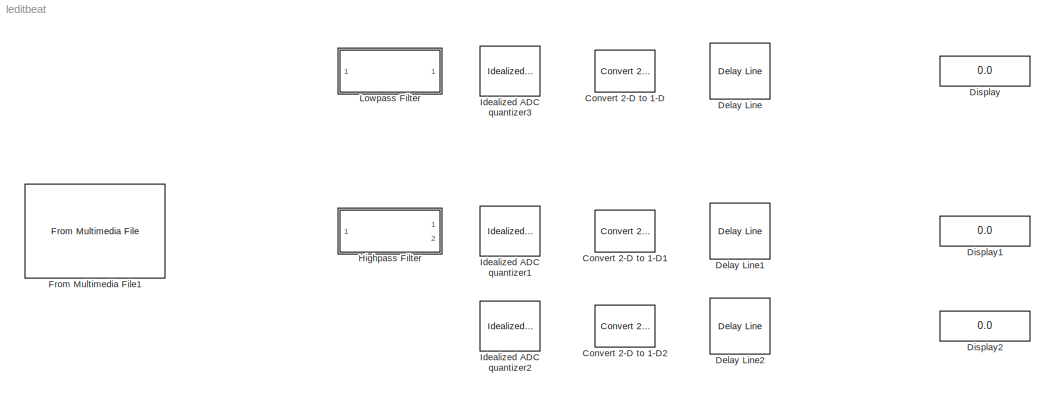
MODEL leditbeat
KIND model
BLOCK [Reference] Convert 2-D to 1-D  REF=dspsigattribs/Convert 2-D to 1-D
  FunctionWithSeparateData = off
  GeneratePreprocessorConditionals = off
  Ports = [1, 1]
  RTWMemSecDataConstants = Inherit from model
  RTWMemSecDataInternal = Inherit from model
  RTWMemSecDataParameters = Inherit from model
  RTWMemSecFuncExecute = Inherit from model
  RTWMemSecFuncInitTerm = Inherit from model
  SID = 12
  ShowPortLabels = none
  SourceBlock = dspsigattribs/Convert 2-D to 1-D
  SourceType = Convert 2-D to 1-D
  SystemSampleTime = -1
BLOCK [Reference] Convert 2-D to 1-D1  REF=dspsigattribs/Convert 2-D to 1-D
  FunctionWithSeparateData = off
  GeneratePreprocessorConditionals = off
  Ports = [1, 1]
  RTWMemSecDataConstants = Inherit from model
  RTWMemSecDataInternal = Inherit from model
  RTWMemSecDataParameters = Inherit from model
  RTWMemSecFuncExecute = Inherit from model
  RTWMemSecFuncInitTerm = Inherit from model
  SID = 19
  ShowPortLabels = none
  SourceBlock = dspsigattribs/Convert 2-D to 1-D
  SourceType = Convert 2-D to 1-D
  SystemSampleTime = -1
BLOCK [Reference] Convert 2-D to 1-D2  REF=dspsigattribs/Convert 2-D to 1-D
  FunctionWithSeparateData = off
  GeneratePreprocessorConditionals = off
  Ports = [1, 1]
  RTWMemSecDataConstants = Inherit from model
  RTWMemSecDataInternal = Inherit from model
  RTWMemSecDataParameters = Inherit from model
  RTWMemSecFuncExecute = Inherit from model
  RTWMemSecFuncInitTerm = Inherit from model
  SID = 20
  ShowPortLabels = none
  SourceBlock = dspsigattribs/Convert 2-D to 1-D
  SourceType = Convert 2-D to 1-D
  SystemSampleTime = -1
BLOCK [Reference] Delay Line  REF=dspbuff3/Delay Line
  Ports = [1, 1]
  SID = 13
  SourceBlock = dspbuff3/Delay Line
  SourceType = Delay Line
  TreatMby1Signals = One channel
  UserData = DataTag0
  UserDataPersistent = on
  directfeed = off
  enable_output = off
  hold_output = off
  ic = 0
  siz = 64
BLOCK [Reference] Delay Line1  REF=dspbuff3/Delay Line
  Ports = [1, 1]
  SID = 23
  SourceBlock = dspbuff3/Delay Line
  SourceType = Delay Line
  TreatMby1Signals = One channel
  UserData = DataTag1
  UserDataPersistent = on
  directfeed = off
  enable_output = off
  hold_output = off
  ic = 0
  siz = 64
BLOCK [Reference] Delay Line2  REF=dspbuff3/Delay Line
  Ports = [1, 1]
  SID = 24
  SourceBlock = dspbuff3/Delay Line
  SourceType = Delay Line
  TreatMby1Signals = One channel
  UserData = DataTag2
  UserDataPersistent = on
  directfeed = off
  enable_output = off
  hold_output = off
  ic = 0
  siz = 64
BLOCK [Display] Display
  Decimation = 1
  Lockdown = off
  Ports = [1]
  SID = 36
BLOCK [Display] Display1
  Decimation = 1
  Lockdown = off
  Ports = [1]
  SID = 38
BLOCK [Display] Display2
  Decimation = 1
  Lockdown = off
  Ports = [1]
  SID = 39
BLOCK [Reference] From Multimedia File1  REF=dspsrcs4/From Multimedia File
  Ports = [0, 1]
  SID = 11
  SourceBlock = dspsrcs4/From Multimedia File
  SourceType = From Multimedia File
  audioDataType = single
  audioFrameSize = 1024
  colorVideoFormat = Separate color signals
  computeAudioFrameSize = off
  dataOrg = Column-major
  fourcc = RGB
  inheritSampleTime = on
  inputFilename = <userpath><path>
  isIntensityVideo = off
  loop = on
  noAudioOutput = off
  numPlays = inf
  outputEOF = off
  outputStreams = Audio only
  userDefinedSampleTime = 1/30
  videoDataType = single
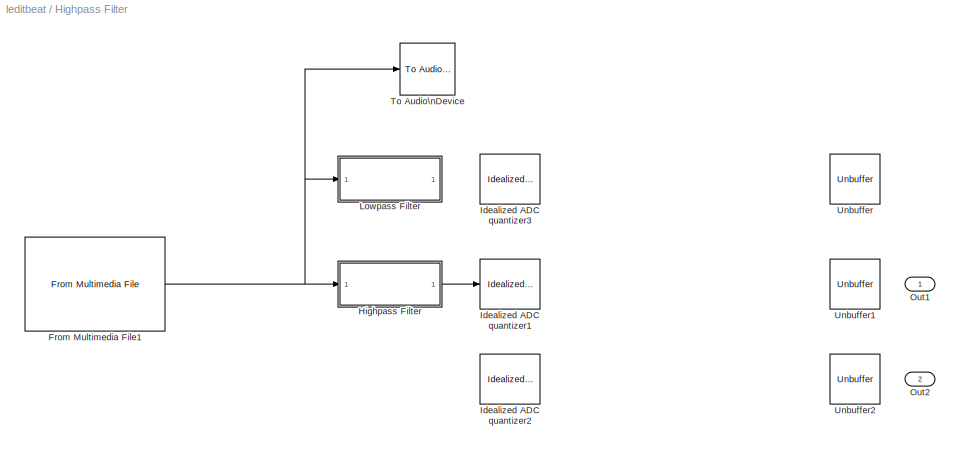
BLOCK [SubSystem] Highpass Filter
  CopyFcn = fdesignblkfcn(gcbh, {'CopyFcn'});
  DialogController = fdesignblkfcn
  DialogControllerArgs = DataTag4
  FunctionWithSeparateData = off
  InitFcn = fdesignblkfcn(gcbh, {'InitFcn'});
  MaskCapabilities = dspmaskedcaps(gcbh)
  MaskDescription = Design a highpass filter
  MaskDisplay = disp('Highpass')
  MaskHelp = helpview(mapfilelocation('dsp'), 'dsphighpassfilter');
  MaskHideContents = off
  MaskIconFrame = on
  MaskIconOpaque = on
  MaskIconRotate = none
  MaskIconUnits = autoscale
  MaskPortRotate = default
  MaskSelfModifiable = on
  MaskType = Highpass Filter
  MinAlgLoopOccurrences = off
  Opaque = off
  Ports = [1, 2]
  PropExecContextOutsideSubsystem = off
  RTWSystemCode = Auto
  RequestExecContextInheritance = off
  SID = 5
  UserData = DataTag3
  UserDataPersistent = on
BLOCK [Reference] Highpass Filter/From Multimedia File1  REF=dspsrcs4/From Multimedia File
  Ports = [0, 1]
  SID = 5:11
  SourceBlock = dspsrcs4/From Multimedia File
  SourceType = From Multimedia File
  audioDataType = single
  audioFrameSize = 1024
  colorVideoFormat = Separate color signals
  computeAudioFrameSize = off
  dataOrg = Column-major
  fourcc = RGB
  inheritSampleTime = on
  inputFilename = <userpath><path>
  isIntensityVideo = off
  loop = on
  noAudioOutput = off
  numPlays = inf
  outputEOF = off
  outputStreams = Audio only
  userDefinedSampleTime = 1/30
  videoDataType = single
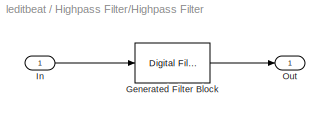
BLOCK [SubSystem] Highpass Filter/Highpass Filter
  CopyFcn = fdesignblkfcn(gcbh, {'CopyFcn'});
  DialogController = fdesignblkfcn
  DialogControllerArgs = DataTag6
  FunctionWithSeparateData = off
  InitFcn = fdesignblkfcn(gcbh, {'InitFcn'});
  MaskCapabilities = dspmaskedcaps(gcbh)
  MaskDescription = Design a highpass filter
  MaskDisplay = disp('Highpass')
  MaskHelp = helpview(mapfilelocation('dsp'), 'dsphighpassfilter');
  MaskHideContents = off
  MaskIconFrame = on
  MaskIconOpaque = on
  MaskIconRotate = none
  MaskIconUnits = autoscale
  MaskPortRotate = default
  MaskSelfModifiable = on
  MaskType = Highpass Filter
  MinAlgLoopOccurrences = off
  Opaque = off
  Ports = [1, 1]
  PropExecContextOutsideSubsystem = off
  RTWSystemCode = Auto
  RequestExecContextInheritance = off
  SID = 5:5
  UserData = DataTag5
  UserDataPersistent = on
BLOCK [Reference] Highpass Filter/Highpass Filter/Generated Filter Block  REF=dsparch4/Digital Filter
  AllPoleFiltStruct = Direct form
  BiQuadCoeffs = [1 0.3 0.4 1 0.1 0.2]
  CoeffSource = Specify via dialog
  DenCoeffs = [1 0.1]
  FIRFiltStruct = Direct form
  FiltPerSampPopup = One filter per frame
  FilterSource = Specify via dialog
  IC = 0
  ICden = 0
  ICnum = 0
  IIRFiltStruct = Direct form II transposed
  InputProcessing = Columns as channels (frame based)
  LatticeCoeffs = [0.2 0.4]
  LockScale = off
  NumCoeffs = [-0.00171368266511037 0.00831437844808067 -0.0127173552334869 0.00556095179025034 0.00733971024255366 -0.00653104905017925 -0.0076900499697795 0.0090269831680985 0.00883886189950912 -0.0129607413537662 -0.0100749586672528 0.0185201740100089 0.011233354613589 -0.0263752483836136 -0.0122707821857659 0.0381809766923897 0.0131304259182936 -0.0582933593251923 -0.0137682959486481 0.102813257992074 0.014...<+483ch>
  Ports = [1, 1]
  SID = 5:5:1054
  ScaleValues = 1
  SourceBlock = dsparch4/Digital Filter
  SourceType = Digital Filter
  Tag = BlockMethodSubSystem
  TypePopup = FIR (all zeros)
  UserData = DataTag7
  UserDataPersistent = on
  accumFracLength = 30
  accumMode = Same as product output
  accumWordLength = 32
  additionalParams = off
  allowOverrides = on
  denIgnore = on
  dfiltObjectName = dfilt.dffir([1 2 1])
  firstCoeffFracLength = 15
  firstCoeffMode = Same word length as input
  firstCoeffWordLength = 16
  memoryFracLength = 15
  memoryMode = Same as accumulator
  memoryWordLength = 16
  multiplicandFracLength = 30
  multiplicandMode = Same as output
  multiplicandWordLength = 32
  outputFracLength = 15
  outputMode = Same as accumulator
  outputWordLength = 16
  overflowMode = off
  prodOutputFracLength = 30
  prodOutputMode = Same as input
  prodOutputWordLength = 32
  roundingMode = Floor
  scaleValueFracLength = 14
  secondCoeffFracLength = 15
  secondCoeffMode = Same as numerator
  secondCoeffWordLength = 16
  showAcc = off
  showCoeff = off
  showMem = off
  showMpy = off
  showOut = off
  stageIOMode = Same as input
  stageIOWordLength = 16
  stageInFracLength = 15
  stageOutFracLength = 15
  tapSumFracLength = 30
  tapSumMode = Same as input
  tapSumWordLength = 32
  thirdCoeffFracLength = 15
  thirdCoeffMode = Same as input
  thirdCoeffWordLength = 16
BLOCK [Inport] Highpass Filter/Highpass Filter/In
  IconDisplay = Port number
  SID = 5:5:9
BLOCK [Outport] Highpass Filter/Highpass Filter/Out
  IconDisplay = Port number
  SID = 5:5:9
BLOCK [Reference] Highpass Filter/Idealized ADC quantizer1  REF=simulink_extras/Additional\nDiscrete/Idealized ADC quantizer
  AttributesFormatString = (settings: %<NumberOfConverterBits>-bit converter\\nVmin: %<Vmin>, Vmax: %<Vmax>)
  FunctionWithSeparateData = off
  GeneratePreprocessorConditionals = off
  NumberOfConverterBits = 8
  OutputDataType = uint8
  OutputNegativeValues = off
  Ports = [1, 1]
  RTWMemSecDataConstants = Inherit from model
  RTWMemSecDataInternal = Inherit from model
  RTWMemSecDataParameters = Inherit from model
  RTWMemSecFuncExecute = Inherit from model
  RTWMemSecFuncInitTerm = Inherit from model
  SID = 5:21
  ShowPortLabels = FromPortIcon
  SourceBlock = simulink_extras/Additional\nDiscrete/Idealized ADC quantizer
  SourceType = IdealADC
  SystemSampleTime = -1
  Vmax = 255
  Vmin = 0
BLOCK [Reference] Highpass Filter/Idealized ADC quantizer2  REF=simulink_extras/Additional\nDiscrete/Idealized ADC quantizer
  AttributesFormatString = (settings: %<NumberOfConverterBits>-bit converter\\nVmin: %<Vmin>, Vmax: %<Vmax>)
  FunctionWithSeparateData = off
  GeneratePreprocessorConditionals = off
  NumberOfConverterBits = 8
  OutputDataType = uint8
  OutputNegativeValues = off
  Ports = [1, 1]
  RTWMemSecDataConstants = Inherit from model
  RTWMemSecDataInternal = Inherit from model
  RTWMemSecDataParameters = Inherit from model
  RTWMemSecFuncExecute = Inherit from model
  RTWMemSecFuncInitTerm = Inherit from model
  SID = 5:22
  ShowPortLabels = FromPortIcon
  SourceBlock = simulink_extras/Additional\nDiscrete/Idealized ADC quantizer
  SourceType = IdealADC
  SystemSampleTime = -1
  Vmax = 255
  Vmin = 0
BLOCK [Reference] Highpass Filter/Idealized ADC quantizer3  REF=simulink_extras/Additional\nDiscrete/Idealized ADC quantizer
  AttributesFormatString = (settings: %<NumberOfConverterBits>-bit converter\\nVmin: %<Vmin>, Vmax: %<Vmax>)
  FunctionWithSeparateData = off
  GeneratePreprocessorConditionals = off
  NumberOfConverterBits = 16
  OutputDataType = single
  OutputNegativeValues = off
  Ports = [1, 1]
  RTWMemSecDataConstants = Inherit from model
  RTWMemSecDataInternal = Inherit from model
  RTWMemSecDataParameters = Inherit from model
  RTWMemSecFuncExecute = Inherit from model
  RTWMemSecFuncInitTerm = Inherit from model
  SID = 5:37
  ShowPortLabels = FromPortIcon
  SourceBlock = simulink_extras/Additional\nDiscrete/Idealized ADC quantizer
  SourceType = IdealADC
  SystemSampleTime = -1
  Vmax = 5
  Vmin = 0
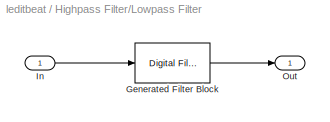
BLOCK [SubSystem] Highpass Filter/Lowpass Filter
  CopyFcn = fdesignblkfcn(gcbh, {'CopyFcn'});
  DialogController = fdesignblkfcn
  DialogControllerArgs = DataTag9
  FunctionWithSeparateData = off
  InitFcn = fdesignblkfcn(gcbh, {'InitFcn'});
  MaskCapabilities = dspmaskedcaps(gcbh)
  MaskDescription = Design a lowpass filter
  MaskDisplay = disp('Lowpass')
  MaskHelp = helpview(mapfilelocation('dsp'), 'dsplowpassfilter');\n
  MaskHideContents = off
  MaskIconFrame = on
  MaskIconOpaque = on
  MaskIconRotate = none
  MaskIconUnits = autoscale
  MaskPortRotate = default
  MaskSelfModifiable = on
  MaskType = Lowpass Filter
  MinAlgLoopOccurrences = off
  Opaque = off
  Ports = [1, 1]
  PropExecContextOutsideSubsystem = off
  RTWSystemCode = Auto
  RequestExecContextInheritance = off
  SID = 5:2
  UserData = DataTag8
  UserDataPersistent = on
BLOCK [Reference] Highpass Filter/Lowpass Filter/Generated Filter Block  REF=dsparch4/Digital Filter
  AllPoleFiltStruct = Direct form
  BiQuadCoeffs = [1 0.3 0.4 1 0.1 0.2]
  CoeffSource = Specify via dialog
  DenCoeffs = [1 0.1]
  FIRFiltStruct = Direct form
  FiltPerSampPopup = One filter per frame
  FilterSource = Specify via dialog
  IC = 0
  ICden = 0
  ICnum = 0
  IIRFiltStruct = Direct form II transposed
  InputProcessing = Columns as channels (frame based)
  LatticeCoeffs = [0.2 0.4]
  LockScale = off
  NumCoeffs = [-0.00242287385232699 -0.00208324498207929 0.00677034464011864 0.016731945423489 0.0111170760810776 -0.00623114541414452 -0.00840161718602686 0.00925679761513803 0.0129828838088558 -0.010121234703279 -0.0182735187337825 0.011431962071778 0.0261758885804076 -0.012489027835323 -0.0379966231454636 0.0133889451993669 0.0581554658147299 -0.0140480435158089 -0.102724668578822 0.0144622757712384 0.317166...<+437ch>
  Ports = [1, 1]
  SID = 5:2:738
  ScaleValues = 1
  SourceBlock = dsparch4/Digital Filter
  SourceType = Digital Filter
  Tag = BlockMethodSubSystem
  TypePopup = FIR (all zeros)
  UserData = DataTag10
  UserDataPersistent = on
  accumFracLength = 30
  accumMode = Same as product output
  accumWordLength = 32
  additionalParams = off
  allowOverrides = on
  denIgnore = on
  dfiltObjectName = dfilt.dffir([1 2 1])
  firstCoeffFracLength = 15
  firstCoeffMode = Same word length as input
  firstCoeffWordLength = 16
  memoryFracLength = 15
  memoryMode = Same as accumulator
  memoryWordLength = 16
  multiplicandFracLength = 30
  multiplicandMode = Same as output
  multiplicandWordLength = 32
  outputFracLength = 15
  outputMode = Same as accumulator
  outputWordLength = 16
  overflowMode = off
  prodOutputFracLength = 30
  prodOutputMode = Same as input
  prodOutputWordLength = 32
  roundingMode = Floor
  scaleValueFracLength = 14
  secondCoeffFracLength = 15
  secondCoeffMode = Same as numerator
  secondCoeffWordLength = 16
  showAcc = off
  showCoeff = off
  showMem = off
  showMpy = off
  showOut = off
  stageIOMode = Same as input
  stageIOWordLength = 16
  stageInFracLength = 15
  stageOutFracLength = 15
  tapSumFracLength = 30
  tapSumMode = Same as input
  tapSumWordLength = 32
  thirdCoeffFracLength = 15
  thirdCoeffMode = Same as input
  thirdCoeffWordLength = 16
BLOCK [Inport] Highpass Filter/Lowpass Filter/In
  IconDisplay = Port number
  SID = 5:2:12
BLOCK [Outport] Highpass Filter/Lowpass Filter/Out
  IconDisplay = Port number
  SID = 5:2:12
BLOCK [Outport] Highpass Filter/Out1
  IconDisplay = Port number
  SID = 5:39
BLOCK [Outport] Highpass Filter/Out2
  IconDisplay = Port number
  Port = 2
  SID = 5:40
BLOCK [Reference] Highpass Filter/To Audio\nDevice  REF=dspsnks4/To Audio\nDevice
  Ports = [1]
  SID = 5:9
  SourceBlock = dspsnks4/To Audio\nDevice
  SourceType = To Audio Device
  autoBufferSize = on
  bufferSize = 4096
  deviceDatatype = Determine from input data type
  deviceName = Default
  inheritSampleRate = on
  queueDuration = 1.0
  sampleRate = 44100
BLOCK [Unbuffer] Highpass Filter/Unbuffer
  Ports = [1, 1]
  SID = 5:14
  SampleBasedProcessing = Same as frame based
BLOCK [Unbuffer] Highpass Filter/Unbuffer1
  Ports = [1, 1]
  SID = 5:25
  SampleBasedProcessing = Same as frame based
BLOCK [Unbuffer] Highpass Filter/Unbuffer2
  Ports = [1, 1]
  SID = 5:26
  SampleBasedProcessing = Same as frame based
BLOCK [Reference] Idealized ADC quantizer1  REF=simulink_extras/Additional\nDiscrete/Idealized ADC quantizer
  AttributesFormatString = (settings: %<NumberOfConverterBits>-bit converter\\nVmin: %<Vmin>, Vmax: %<Vmax>)
  FunctionWithSeparateData = off
  GeneratePreprocessorConditionals = off
  NumberOfConverterBits = 16
  OutputDataType = int16
  OutputNegativeValues = off
  Ports = [1, 1]
  RTWMemSecDataConstants = Inherit from model
  RTWMemSecDataInternal = Inherit from model
  RTWMemSecDataParameters = Inherit from model
  RTWMemSecFuncExecute = Inherit from model
  RTWMemSecFuncInitTerm = Inherit from model
  SID = 21
  ShowPortLabels = FromPortIcon
  SourceBlock = simulink_extras/Additional\nDiscrete/Idealized ADC quantizer
  SourceType = IdealADC
  SystemSampleTime = -1
  Vmax = 5
  Vmin = 0
BLOCK [Reference] Idealized ADC quantizer2  REF=simulink_extras/Additional\nDiscrete/Idealized ADC quantizer
  AttributesFormatString = (settings: %<NumberOfConverterBits>-bit converter\\nVmin: %<Vmin>, Vmax: %<Vmax>)
  FunctionWithSeparateData = off
  GeneratePreprocessorConditionals = off
  NumberOfConverterBits = 16
  OutputDataType = int16
  OutputNegativeValues = off
  Ports = [1, 1]
  RTWMemSecDataConstants = Inherit from model
  RTWMemSecDataInternal = Inherit from model
  RTWMemSecDataParameters = Inherit from model
  RTWMemSecFuncExecute = Inherit from model
  RTWMemSecFuncInitTerm = Inherit from model
  SID = 22
  ShowPortLabels = FromPortIcon
  SourceBlock = simulink_extras/Additional\nDiscrete/Idealized ADC quantizer
  SourceType = IdealADC
  SystemSampleTime = -1
  Vmax = 5
  Vmin = 0
BLOCK [Reference] Idealized ADC quantizer3  REF=simulink_extras/Additional\nDiscrete/Idealized ADC quantizer
  AttributesFormatString = (settings: %<NumberOfConverterBits>-bit converter\\nVmin: %<Vmin>, Vmax: %<Vmax>)
  FunctionWithSeparateData = off
  GeneratePreprocessorConditionals = off
  NumberOfConverterBits = 16
  OutputDataType = int16
  OutputNegativeValues = off
  Ports = [1, 1]
  RTWMemSecDataConstants = Inherit from model
  RTWMemSecDataInternal = Inherit from model
  RTWMemSecDataParameters = Inherit from model
  RTWMemSecFuncExecute = Inherit from model
  RTWMemSecFuncInitTerm = Inherit from model
  SID = 37
  ShowPortLabels = FromPortIcon
  SourceBlock = simulink_extras/Additional\nDiscrete/Idealized ADC quantizer
  SourceType = IdealADC
  SystemSampleTime = -1
  Vmax = 5
  Vmin = 0
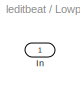
BLOCK [SubSystem] Lowpass Filter
  CopyFcn = fdesignblkfcn(gcbh, {'CopyFcn'});
  DialogController = fdesignblkfcn
  DialogControllerArgs = DataTag12
  FunctionWithSeparateData = off
  InitFcn = fdesignblkfcn(gcbh, {'InitFcn'});
  MaskCapabilities = dspmaskedcaps(gcbh)
  MaskDescription = Design a lowpass filter
  MaskDisplay = disp('Lowpass')
  MaskHelp = helpview(mapfilelocation('dsp'), 'dsplowpassfilter');\n
  MaskHideContents = off
  MaskIconFrame = on
  MaskIconOpaque = on
  MaskIconRotate = none
  MaskIconUnits = autoscale
  MaskPortRotate = default
  MaskSelfModifiable = on
  MaskType = Lowpass Filter
  MinAlgLoopOccurrences = off
  Opaque = off
  Ports = [1, 1]
  PropExecContextOutsideSubsystem = off
  RTWSystemCode = Auto
  RequestExecContextInheritance = off
  SID = 2
  UserData = DataTag11
  UserDataPersistent = on
BLOCK [Inport] Lowpass Filter/In
  IconDisplay = Port number
  SID = 2:12
NET Highpass Filter/From Multimedia File1:1 -> Highpass Filter/Highpass Filter:1, Highpass Filter/Lowpass Filter:1, Highpass Filter/To Audio\nDevice:1
LINE Highpass Filter/Highpass Filter/Generated Filter Block:1 -> Highpass Filter/Highpass Filter/Out:1
LINE Highpass Filter/Highpass Filter/In:1 -> Highpass Filter/Highpass Filter/Generated Filter Block:1
LINE Highpass Filter/Highpass Filter:1 -> Highpass Filter/Idealized ADC quantizer1:1
LINE Highpass Filter/Lowpass Filter/Generated Filter Block:1 -> Highpass Filter/Lowpass Filter/Out:1
LINE Highpass Filter/Lowpass Filter/In:1 -> Highpass Filter/Lowpass Filter/Generated Filter Block:1
note: NET lines group one-source signal fan-out (src -> all destinations, sorted); 1:1 wires keep LINE
note: 2 file-system paths scrubbed to <path> (not preserved elsewhere — flat text is the only slx artifact)
